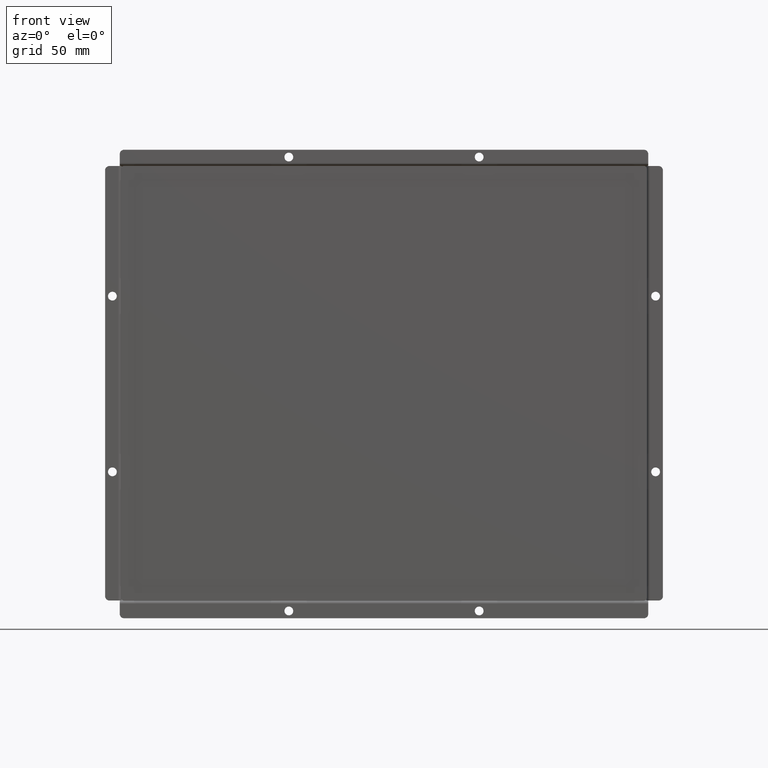
[diagram: clean part render]
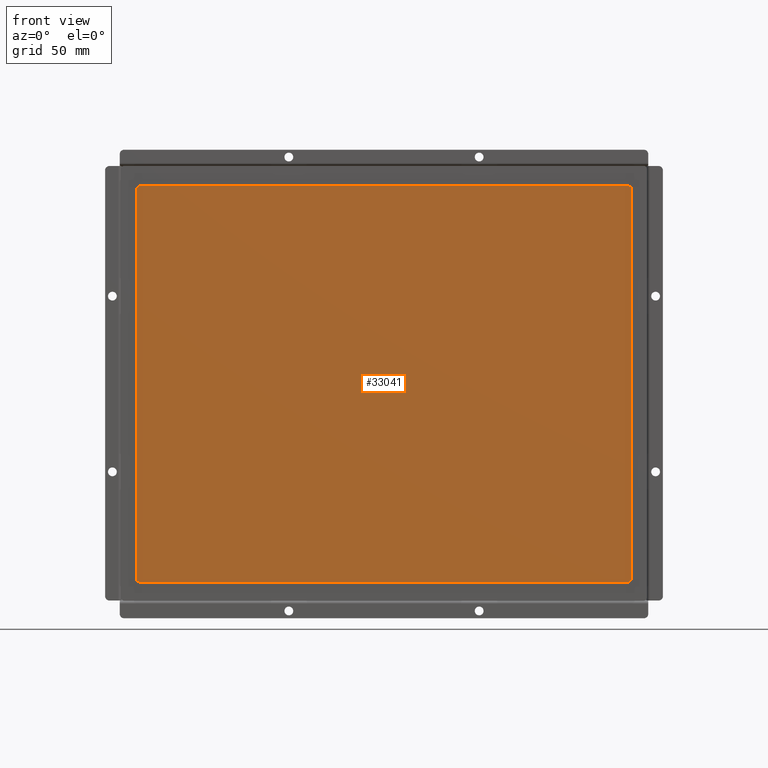
[diagram: same view with one face highlighted and labeled with its STEP entity id]
A machine part, front view. The second image highlights one B-rep face of the part: STEP entity #33041.
In plain terms, the highlighted planar face has unit normal (0, -1, 0).
Its self-contained STEP definition (entity closure, byte-faithful):
#2426=PLANE('',#35513);
#3685=FACE_OUTER_BOUND('',#5613,.T.);
#5613=EDGE_LOOP('',(#24150,#24151,#24152,#24153,#24154,#24155,#24156,#24157));
#7849=LINE('',#48874,#11059);
#7850=LINE('',#48878,#11060);
#7851=LINE('',#48882,#11061);
#7852=LINE('',#48885,#11062);
#11059=VECTOR('',#39244,10.);
#11060=VECTOR('',#39247,10.);
#11061=VECTOR('',#39250,10.);
#11062=VECTOR('',#39253,10.);
#14070=CIRCLE('',#35491,1.99999999999999);
#14071=CIRCLE('',#35492,1.99999999999999);
#14072=CIRCLE('',#35493,2.00000000000003);
#14073=CIRCLE('',#35494,1.99999999999999);
#15481=VERTEX_POINT('',#48870);
#15482=VERTEX_POINT('',#48871);
#15483=VERTEX_POINT('',#48873);
#15484=VERTEX_POINT('',#48875);
#15485=VERTEX_POINT('',#48877);
#15486=VERTEX_POINT('',#48879);
#15487=VERTEX_POINT('',#48881);
#15488=VERTEX_POINT('',#48883);
#18814=EDGE_CURVE('',#15481,#15482,#14070,.T.);
#18815=EDGE_CURVE('',#15483,#15481,#7849,.T.);
#18816=EDGE_CURVE('',#15484,#15483,#14071,.T.);
#18817=EDGE_CURVE('',#15485,#15484,#7850,.T.);
#18818=EDGE_CURVE('',#15486,#15485,#14072,.T.);
#18819=EDGE_CURVE('',#15487,#15486,#7851,.T.);
#18820=EDGE_CURVE('',#15488,#15487,#14073,.T.);
#18821=EDGE_CURVE('',#15482,#15488,#7852,.T.);
#24150=ORIENTED_EDGE('',*,*,#18814,.T.);
#24151=ORIENTED_EDGE('',*,*,#18821,.T.);
#24152=ORIENTED_EDGE('',*,*,#18820,.T.);
#24153=ORIENTED_EDGE('',*,*,#18819,.T.);
#24154=ORIENTED_EDGE('',*,*,#18818,.T.);
#24155=ORIENTED_EDGE('',*,*,#18817,.T.);
#24156=ORIENTED_EDGE('',*,*,#18816,.T.);
#24157=ORIENTED_EDGE('',*,*,#18815,.T.);
#33041=ADVANCED_FACE('',(#3685),#2426,.T.);
#35491=AXIS2_PLACEMENT_3D('',#48872,#39242,#39243);
#35492=AXIS2_PLACEMENT_3D('',#48876,#39245,#39246);
#35493=AXIS2_PLACEMENT_3D('',#48880,#39248,#39249);
#35494=AXIS2_PLACEMENT_3D('',#48884,#39251,#39252);
#35513=AXIS2_PLACEMENT_3D('',#48936,#39310,#39311);
#39242=DIRECTION('center_axis',(0.,0.,1.));
#39243=DIRECTION('ref_axis',(-1.,0.,0.));
#39244=DIRECTION('',(0.,1.,0.));
#39245=DIRECTION('center_axis',(0.,0.,1.));
#39246=DIRECTION('ref_axis',(0.,1.,0.));
#39247=DIRECTION('',(1.,2.12788313296628E-16,0.));
#39248=DIRECTION('center_axis',(0.,0.,1.));
#39249=DIRECTION('ref_axis',(1.,0.,0.));
#39250=DIRECTION('',(0.,-1.,0.));
#39251=DIRECTION('center_axis',(0.,0.,1.));
#39252=DIRECTION('ref_axis',(0.,-1.,0.));
#39253=DIRECTION('',(-1.,-4.25576626593256E-16,0.));
#39310=DIRECTION('center_axis',(0.,0.,1.));
#39311=DIRECTION('ref_axis',(1.,0.,0.));
#48870=CARTESIAN_POINT('',(168.96,132.67,18.));
#48871=CARTESIAN_POINT('',(166.96,134.67,18.));
#48872=CARTESIAN_POINT('Origin',(166.96,132.67,18.));
#48873=CARTESIAN_POINT('',(168.96,-133.67,18.));
#48874=CARTESIAN_POINT('',(168.96,-66.835,18.));
#48875=CARTESIAN_POINT('',(166.96,-135.67,18.));
#48876=CARTESIAN_POINT('Origin',(166.96,-133.67,18.));
#48877=CARTESIAN_POINT('',(-166.96,-135.67,18.));
#48878=CARTESIAN_POINT('',(-83.4799999999999,-135.67,18.));
#48879=CARTESIAN_POINT('',(-168.96,-133.67,18.));
#48880=CARTESIAN_POINT('Origin',(-166.96,-133.67,18.));
#48881=CARTESIAN_POINT('',(-168.96,132.67,18.));
#48882=CARTESIAN_POINT('',(-168.96,66.335,18.));
#48883=CARTESIAN_POINT('',(-166.96,134.67,18.));
#48884=CARTESIAN_POINT('Origin',(-166.96,132.67,18.));
#48885=CARTESIAN_POINT('',(83.4800000000001,134.67,18.));
#48936=CARTESIAN_POINT('Origin',(3.5527136788005E-14,0.,18.));